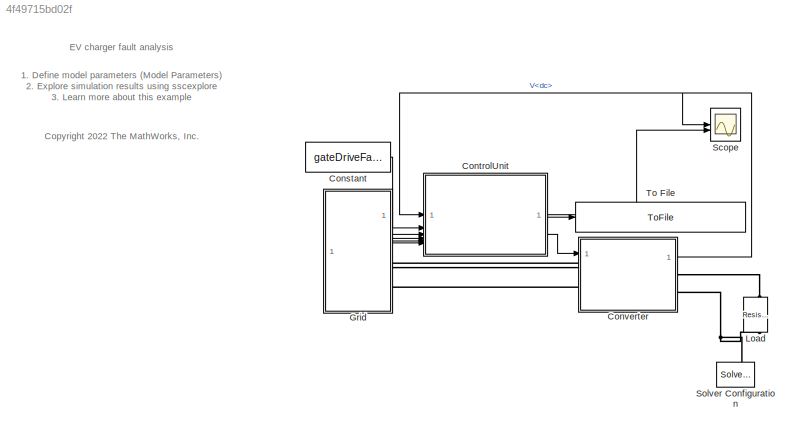
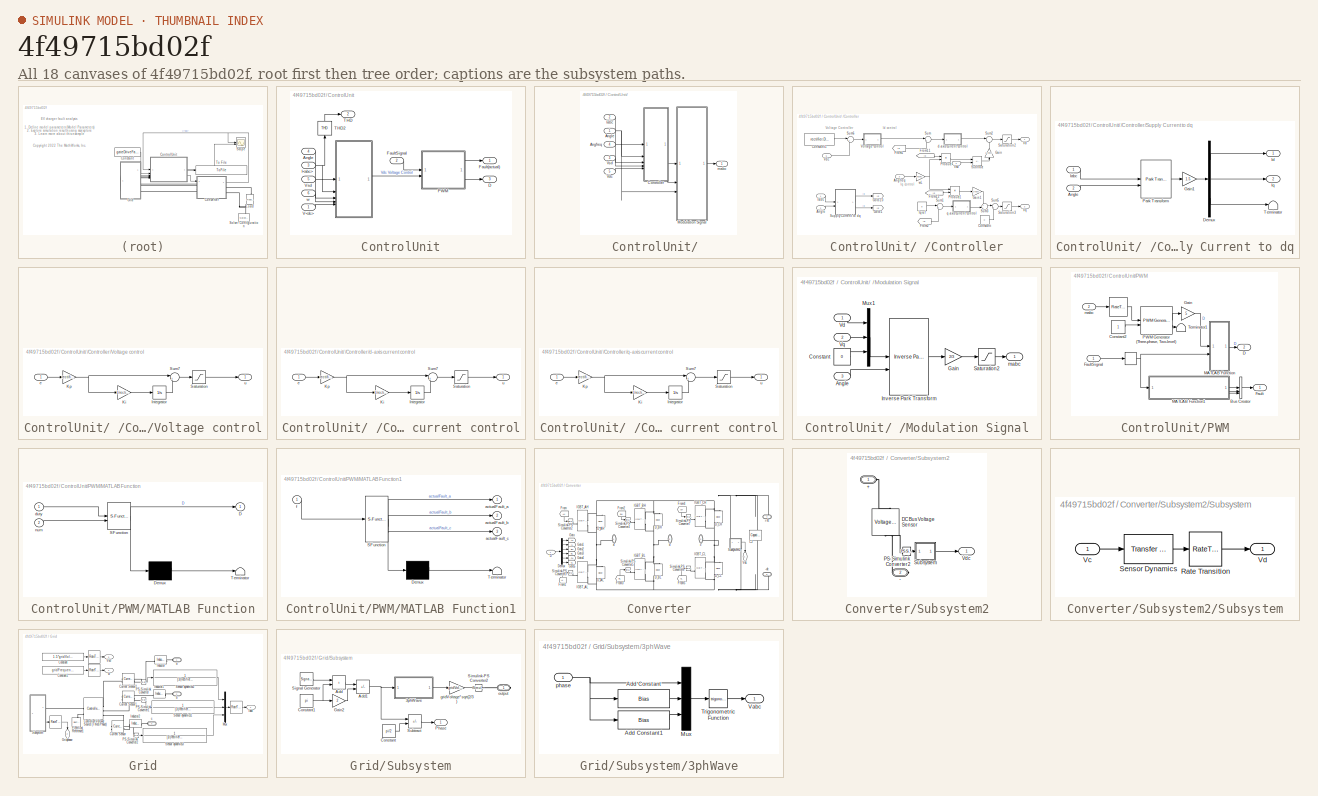
[diagram: thumbnail index - all 18 canvases of the model, root first then tree order]
MODEL slx_4f49715bd02f
KIND model
CONFIG AbsTol = 1e-3
CONFIG EnableMultiTasking = off
CONFIG FixedStep = 1e-7
CONFIG MaxStep = 1e-6
CONFIG MinStep = auto
CONFIG PreLoadFcn = systemLoadR=10;gridVoltage=415;gateDriveFault=zeros(6,1);\nee_EVchargerFaultAnalysis_ini\n
CONFIG RelTol = 1e-3
CONFIG SampleTimeConstraint = Unconstrained
CONFIG SolverName = ode1be
CONFIG StartTime = 0.0
CONFIG StopTime = .02
BLOCK [Constant] Constant
  Value = gateDriveFault
BLOCK [SubSystem] ControlUnit
  NameLocation = top
BLOCK [SubSystem] ControlUnit/ 
  NameLocation = right
BLOCK [Inport] ControlUnit/ /Angfreq
  Port = 4
BLOCK [Inport] ControlUnit/ /Angle
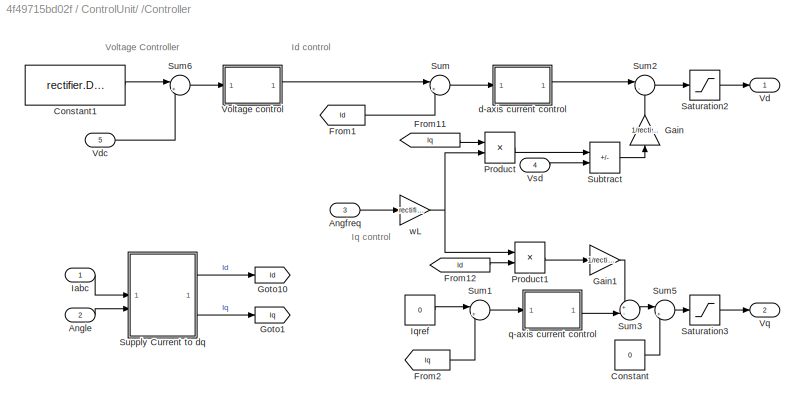
BLOCK [SubSystem] ControlUnit/ /Controller
BLOCK [Inport] ControlUnit/ /Controller/Angfreq
  Port = 3
BLOCK [Inport] ControlUnit/ /Controller/Angle
  Port = 2
BLOCK [Constant] ControlUnit/ /Controller/Constant
  Value = 0
BLOCK [Constant] ControlUnit/ /Controller/Constant1
  Value = rectifier.DCVoltage
BLOCK [From] ControlUnit/ /Controller/From1
  GotoTag = Id
  TagVisibility = global
BLOCK [From] ControlUnit/ /Controller/From11
  GotoTag = Iq
  TagVisibility = global
BLOCK [From] ControlUnit/ /Controller/From12
  GotoTag = Id
  TagVisibility = global
BLOCK [From] ControlUnit/ /Controller/From2
  GotoTag = Iq
  TagVisibility = global
BLOCK [Gain] ControlUnit/ /Controller/Gain
  Gain = 1/rectifier.G
  NameLocation = right
BLOCK [Gain] ControlUnit/ /Controller/Gain1
  Gain = 1/rectifier.G
BLOCK [Goto] ControlUnit/ /Controller/Goto1
  GotoTag = Iq
  TagVisibility = global
BLOCK [Goto] ControlUnit/ /Controller/Goto10
  GotoTag = Id
  TagVisibility = global
BLOCK [Inport] ControlUnit/ /Controller/Iabc
BLOCK [Constant] ControlUnit/ /Controller/Iqref
  Value = 0
BLOCK [Product] ControlUnit/ /Controller/Product
BLOCK [Product] ControlUnit/ /Controller/Product1
BLOCK [Saturate] ControlUnit/ /Controller/Saturation2
  LowerLimit = -3
  UpperLimit = 4
BLOCK [Saturate] ControlUnit/ /Controller/Saturation3
  LowerLimit = -1
  UpperLimit = 1
BLOCK [Sum] ControlUnit/ /Controller/Subtract
  IconShape = rectangular
  Inputs = -+
BLOCK [Sum] ControlUnit/ /Controller/Sum
  Inputs = |+-
BLOCK [Sum] ControlUnit/ /Controller/Sum1
  Inputs = |+-
  NameLocation = top
BLOCK [Sum] ControlUnit/ /Controller/Sum2
  Inputs = |-+
BLOCK [Sum] ControlUnit/ /Controller/Sum3
  Inputs = +-|
BLOCK [Sum] ControlUnit/ /Controller/Sum5
  Inputs = |++
BLOCK [Sum] ControlUnit/ /Controller/Sum6
  Inputs = |+-
BLOCK [SubSystem] ControlUnit/ /Controller/Supply Current to dq
BLOCK [Inport] ControlUnit/ /Controller/Supply Current to dq/Angle
  Port = 2
BLOCK [Demux] ControlUnit/ /Controller/Supply Current to dq/Demux
  Outputs = 3
BLOCK [Gain] ControlUnit/ /Controller/Supply Current to dq/Gain1
  Gain = 1.5
BLOCK [Inport] ControlUnit/ /Controller/Supply Current to dq/Iabc
BLOCK [Outport] ControlUnit/ /Controller/Supply Current to dq/Id
  VectorParamsAs1DForOutWhenUnconnected = off
BLOCK [Outport] ControlUnit/ /Controller/Supply Current to dq/Iq
  Port = 2
  VectorParamsAs1DForOutWhenUnconnected = off
BLOCK [Reference] ControlUnit/ /Controller/Supply Current to dq/Park Transform  REF=eeTransforms/Park Transform
  SourceBlock = eeTransforms/Park Transform
  SourceType = Park Transform
BLOCK [Terminator] ControlUnit/ /Controller/Supply Current to dq/Terminator
BLOCK [Outport] ControlUnit/ /Controller/Vd
  VectorParamsAs1DForOutWhenUnconnected = off
BLOCK [Inport] ControlUnit/ /Controller/Vdc
  Port = 5
BLOCK [SubSystem] ControlUnit/ /Controller/Voltage control
BLOCK [Integrator] ControlUnit/ /Controller/Voltage control/Integrator
  LimitOutput = on
  LowerSaturationLimit = -500
  UpperSaturationLimit = 500
BLOCK [Gain] ControlUnit/ /Controller/Voltage control/Ki
  Gain = 1/rectifier.controller.VoltageT
BLOCK [Gain] ControlUnit/ /Controller/Voltage control/Kp
  Gain = rectifier.controller.VoltageG
BLOCK [Saturate] ControlUnit/ /Controller/Voltage control/Saturation
  LowerLimit = -600
  UpperLimit = 600
BLOCK [Sum] ControlUnit/ /Controller/Voltage control/Sum7
  Inputs = |++
BLOCK [Inport] ControlUnit/ /Controller/Voltage control/e
BLOCK [Outport] ControlUnit/ /Controller/Voltage control/u
  VectorParamsAs1DForOutWhenUnconnected = off
BLOCK [Outport] ControlUnit/ /Controller/Vq
  Port = 2
  VectorParamsAs1DForOutWhenUnconnected = off
BLOCK [Inport] ControlUnit/ /Controller/Vsd
  Port = 4
BLOCK [SubSystem] ControlUnit/ /Controller/d-axis current control
BLOCK [Integrator] ControlUnit/ /Controller/d-axis current control/Integrator
  LimitOutput = on
  LowerSaturationLimit = -10
  UpperSaturationLimit = 10
BLOCK [Gain] ControlUnit/ /Controller/d-axis current control/Ki
  Gain = 1/rectifier.controller.CurrentT
BLOCK [Gain] ControlUnit/ /Controller/d-axis current control/Kp
  Gain = rectifier.controller.CurrentG
BLOCK [Saturate] ControlUnit/ /Controller/d-axis current control/Saturation
  LowerLimit = -4
  UpperLimit = 4
BLOCK [Sum] ControlUnit/ /Controller/d-axis current control/Sum7
  Inputs = |++
BLOCK [Inport] ControlUnit/ /Controller/d-axis current control/e
BLOCK [Outport] ControlUnit/ /Controller/d-axis current control/u
  VectorParamsAs1DForOutWhenUnconnected = off
BLOCK [SubSystem] ControlUnit/ /Controller/q-axis current control
BLOCK [Integrator] ControlUnit/ /Controller/q-axis current control/Integrator
  LimitOutput = on
  LowerSaturationLimit = -8
  UpperSaturationLimit = 8
BLOCK [Gain] ControlUnit/ /Controller/q-axis current control/Ki
  Gain = 1/rectifier.controller.CurrentT
BLOCK [Gain] ControlUnit/ /Controller/q-axis current control/Kp
  Gain = rectifier.controller.CurrentG
BLOCK [Saturate] ControlUnit/ /Controller/q-axis current control/Saturation
  LowerLimit = -3
  UpperLimit = 3
BLOCK [Sum] ControlUnit/ /Controller/q-axis current control/Sum7
  Inputs = |++
BLOCK [Inport] ControlUnit/ /Controller/q-axis current control/e
BLOCK [Outport] ControlUnit/ /Controller/q-axis current control/u
  VectorParamsAs1DForOutWhenUnconnected = off
BLOCK [Gain] ControlUnit/ /Controller/wL
  Gain = rectifier.lineInductance
BLOCK [Inport] ControlUnit/ /Iabc
  Port = 2
BLOCK [SubSystem] ControlUnit/ /Modulation Signal
BLOCK [Inport] ControlUnit/ /Modulation Signal/Angle
  NameLocation = left
  Port = 3
BLOCK [Constant] ControlUnit/ /Modulation Signal/Constant
  Value = 0
BLOCK [Gain] ControlUnit/ /Modulation Signal/Gain
  Gain = 2/3
BLOCK [Reference] ControlUnit/ /Modulation Signal/Inverse Park Transform  REF=eeTransforms/Inverse
Park Transform
  SourceBlock = eeTransforms/Inverse\nPark Transform
  SourceType = Inverse Park Transform
BLOCK [Mux] ControlUnit/ /Modulation Signal/Mux1
  DisplayOption = bar
  Inputs = 3
BLOCK [Saturate] ControlUnit/ /Modulation Signal/Saturation2
  LowerLimit = -1
  UpperLimit = 1
BLOCK [Inport] ControlUnit/ /Modulation Signal/Vd
  NameLocation = left
BLOCK [Inport] ControlUnit/ /Modulation Signal/Vq
  NameLocation = left
  Port = 2
BLOCK [Outport] ControlUnit/ /Modulation Signal/mabc
  VectorParamsAs1DForOutWhenUnconnected = off
BLOCK [Inport] ControlUnit/ /Vdc
  Port = 5
BLOCK [Inport] ControlUnit/ /Vsd
  Port = 3
BLOCK [Outport] ControlUnit/ /mabc
BLOCK [Inport] ControlUnit/Angle
  Port = 4
BLOCK [Outport] ControlUnit/D
  Port = 3
BLOCK [Outport] ControlUnit/Fault(actual)
BLOCK [Inport] ControlUnit/FaultSignal
  Port = 2
BLOCK [Inport] ControlUnit/I<abc>
  Port = 3
BLOCK [SubSystem] ControlUnit/PWM
BLOCK [RateTransition] ControlUnit/PWM/     
  OutPortSampleTime = rectifier.VoltageSensorT
BLOCK [RateTransition] ControlUnit/PWM/      
  OutPortSampleTime = rectifier.VoltageSensorT
BLOCK [BusCreator] ControlUnit/PWM/Bus Creator
  DisplayOption = bar
  InheritFromInputs = on
  Inputs = 3
BLOCK [Constant] ControlUnit/PWM/Constant2
  SampleTime = rectifier.VoltageSensorT
BLOCK [Outport] ControlUnit/PWM/D
  Port = 2
BLOCK [Outport] ControlUnit/PWM/Fault
BLOCK [Inport] ControlUnit/PWM/FaultSignal
BLOCK [Gain] ControlUnit/PWM/Gain
  Gain = 5
BLOCK [SubSystem] ControlUnit/PWM/MATLAB Function
  ErrorFcn = Stateflow.Translate.translate
  PermitHierarchicalResolution = ExplicitOnly
  SFBlockType = MATLAB Function
  TreatAsAtomicUnit = on
BLOCK [Demux] ControlUnit/PWM/MATLAB Function/ Demux 
  Outputs = 1
BLOCK [S-Function] ControlUnit/PWM/MATLAB Function/ SFunction 
  EnableBusSupport = on
  FunctionName = sf_sfun
  PortCounts = [2 2]
  SFcnIsStateOwnerBlock = off
  SFunctionDeploymentMode = off
  Tag = Stateflow S-Function 2
BLOCK [Terminator] ControlUnit/PWM/MATLAB Function/ Terminator 
BLOCK [Outport] ControlUnit/PWM/MATLAB Function/D
BLOCK [Inport] ControlUnit/PWM/MATLAB Function/duty
BLOCK [Inport] ControlUnit/PWM/MATLAB Function/num
  Port = 2
BLOCK [SubSystem] ControlUnit/PWM/MATLAB Function1
  ErrorFcn = Stateflow.Translate.translate
  PermitHierarchicalResolution = ExplicitOnly
  SFBlockType = MATLAB Function
  TreatAsAtomicUnit = on
BLOCK [Demux] ControlUnit/PWM/MATLAB Function1/ Demux 
  Outputs = 1
BLOCK [S-Function] ControlUnit/PWM/MATLAB Function1/ SFunction 
  EnableBusSupport = on
  FunctionName = sf_sfun
  PortCounts = [1 4]
  SFcnIsStateOwnerBlock = off
  SFunctionDeploymentMode = off
  Tag = Stateflow S-Function 1
BLOCK [Terminator] ControlUnit/PWM/MATLAB Function1/ Terminator 
BLOCK [Outport] ControlUnit/PWM/MATLAB Function1/actualFault_a
BLOCK [Outport] ControlUnit/PWM/MATLAB Function1/actualFault_b
  Port = 2
BLOCK [Outport] ControlUnit/PWM/MATLAB Function1/actualFault_c
  Port = 3
BLOCK [Inport] ControlUnit/PWM/MATLAB Function1/f
BLOCK [Reference] ControlUnit/PWM/PWM Generator (Three-phase, Two-level)  REF=eePwmGeneratorTwoLevel/PWM Generator
(Three-phase, Two-level)
  SourceBlock = eePwmGeneratorTwoLevel/PWM Generator\n(Three-phase, Two-level)
  SourceType = PWM Generator (three-phase, two-level)
BLOCK [Terminator] ControlUnit/PWM/Terminator1
BLOCK [Inport] ControlUnit/PWM/mabc
  Port = 2
BLOCK [Outport] ControlUnit/THD
  Port = 2
BLOCK [Reference] ControlUnit/THD2  REF=spsTHDLib/THD
  NameLocation = right
  SourceBlock = spsTHDLib/THD
  SourceType = THD
BLOCK [Inport] ControlUnit/V<dc>
BLOCK [Inport] ControlUnit/Vsd
  Port = 5
BLOCK [Inport] ControlUnit/w
  Port = 6
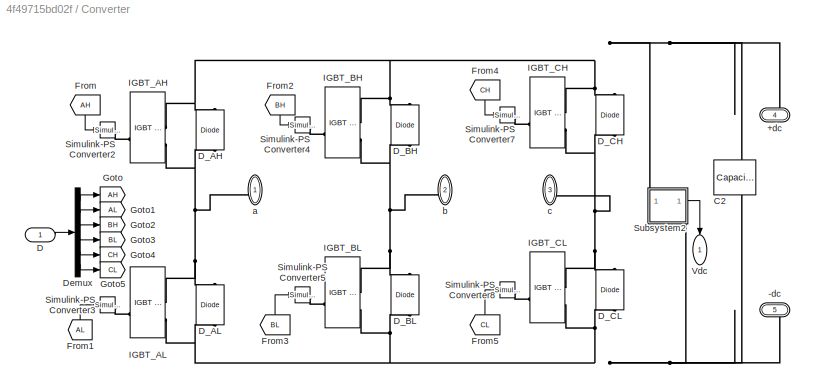
BLOCK [SubSystem] Converter
BLOCK [PMIOPort] Converter/+dc
  Port = 4
  Side = Right
BLOCK [PMIOPort] Converter/-dc
  Port = 5
  Side = Right
BLOCK [Reference] Converter/C2  REF=fl_lib/Electrical/Electrical Elements/Capacitor
  NameLocation = left
  SourceBlock = fl_lib/Electrical/Electrical Elements/Capacitor
  SourceType = Capacitor
BLOCK [Inport] Converter/D
BLOCK [Reference] Converter/D_AH  REF=fl_lib/Electrical/Electrical Elements/Diode
  NameLocation = right
  SourceBlock = fl_lib/Electrical/Electrical Elements/Diode
  SourceType = Diode
BLOCK [Reference] Converter/D_AL  REF=fl_lib/Electrical/Electrical Elements/Diode
  NameLocation = right
  SourceBlock = fl_lib/Electrical/Electrical Elements/Diode
  SourceType = Diode
BLOCK [Reference] Converter/D_BH  REF=fl_lib/Electrical/Electrical Elements/Diode
  NameLocation = right
  SourceBlock = fl_lib/Electrical/Electrical Elements/Diode
  SourceType = Diode
BLOCK [Reference] Converter/D_BL  REF=fl_lib/Electrical/Electrical Elements/Diode
  NameLocation = right
  SourceBlock = fl_lib/Electrical/Electrical Elements/Diode
  SourceType = Diode
BLOCK [Reference] Converter/D_CH  REF=fl_lib/Electrical/Electrical Elements/Diode
  NameLocation = right
  SourceBlock = fl_lib/Electrical/Electrical Elements/Diode
  SourceType = Diode
BLOCK [Reference] Converter/D_CL  REF=fl_lib/Electrical/Electrical Elements/Diode
  NameLocation = right
  SourceBlock = fl_lib/Electrical/Electrical Elements/Diode
  SourceType = Diode
BLOCK [Demux] Converter/Demux
  Outputs = 6
BLOCK [From] Converter/From
  GotoTag = AH
  NameLocation = left
BLOCK [From] Converter/From1
  GotoTag = AL
  NameLocation = right
BLOCK [From] Converter/From2
  GotoTag = BH
  NameLocation = left
BLOCK [From] Converter/From3
  GotoTag = BL
  NameLocation = right
BLOCK [From] Converter/From4
  GotoTag = CH
  NameLocation = left
BLOCK [From] Converter/From5
  GotoTag = CL
  NameLocation = right
BLOCK [Goto] Converter/Goto
  GotoTag = AH
BLOCK [Goto] Converter/Goto1
  GotoTag = AL
BLOCK [Goto] Converter/Goto2
  GotoTag = BH
BLOCK [Goto] Converter/Goto3
  GotoTag = BL
BLOCK [Goto] Converter/Goto4
  GotoTag = CH
BLOCK [Goto] Converter/Goto5
  GotoTag = CL
BLOCK [Reference] Converter/IGBT_AH  REF=ee_lib/Semiconductors &
Converters/IGBT
(Ideal,
Switching)
  SourceBlock = ee_lib/Semiconductors &\nConverters/IGBT\n(Ideal,\nSwitching)
  SourceType = IGBT\n(Ideal,\nSwitching)
BLOCK [Reference] Converter/IGBT_AL  REF=ee_lib/Semiconductors &
Converters/IGBT
(Ideal,
Switching)
  SourceBlock = ee_lib/Semiconductors &\nConverters/IGBT\n(Ideal,\nSwitching)
  SourceType = IGBT\n(Ideal,\nSwitching)
BLOCK [Reference] Converter/IGBT_BH  REF=ee_lib/Semiconductors &
Converters/IGBT
(Ideal,
Switching)
  SourceBlock = ee_lib/Semiconductors &\nConverters/IGBT\n(Ideal,\nSwitching)
  SourceType = IGBT\n(Ideal,\nSwitching)
BLOCK [Reference] Converter/IGBT_BL  REF=ee_lib/Semiconductors &
Converters/IGBT
(Ideal,
Switching)
  SourceBlock = ee_lib/Semiconductors &\nConverters/IGBT\n(Ideal,\nSwitching)
  SourceType = IGBT\n(Ideal,\nSwitching)
BLOCK [Reference] Converter/IGBT_CH  REF=ee_lib/Semiconductors &
Converters/IGBT
(Ideal,
Switching)
  SourceBlock = ee_lib/Semiconductors &\nConverters/IGBT\n(Ideal,\nSwitching)
  SourceType = IGBT\n(Ideal,\nSwitching)
BLOCK [Reference] Converter/IGBT_CL  REF=ee_lib/Semiconductors &
Converters/IGBT
(Ideal,
Switching)
  SourceBlock = ee_lib/Semiconductors &\nConverters/IGBT\n(Ideal,\nSwitching)
  SourceType = IGBT\n(Ideal,\nSwitching)
BLOCK [Reference] Converter/Simulink-PS Converter2  REF=nesl_utility_internal/Simulink-PS
Converter
  SourceBlock = nesl_utility_internal/Simulink-PS\nConverter
  SourceType = Simulink-PS\nConverter
BLOCK [Reference] Converter/Simulink-PS Converter3  REF=nesl_utility_internal/Simulink-PS
Converter
  SourceBlock = nesl_utility_internal/Simulink-PS\nConverter
  SourceType = Simulink-PS\nConverter
BLOCK [Reference] Converter/Simulink-PS Converter4  REF=nesl_utility_internal/Simulink-PS
Converter
  SourceBlock = nesl_utility_internal/Simulink-PS\nConverter
  SourceType = Simulink-PS\nConverter
BLOCK [Reference] Converter/Simulink-PS Converter5  REF=nesl_utility_internal/Simulink-PS
Converter
  SourceBlock = nesl_utility_internal/Simulink-PS\nConverter
  SourceType = Simulink-PS\nConverter
BLOCK [Reference] Converter/Simulink-PS Converter7  REF=nesl_utility_internal/Simulink-PS
Converter
  SourceBlock = nesl_utility_internal/Simulink-PS\nConverter
  SourceType = Simulink-PS\nConverter
BLOCK [Reference] Converter/Simulink-PS Converter8  REF=nesl_utility_internal/Simulink-PS
Converter
  SourceBlock = nesl_utility_internal/Simulink-PS\nConverter
  SourceType = Simulink-PS\nConverter
BLOCK [SubSystem] Converter/Subsystem2
  PortSchema = {"entries":[{"content":{"sides":[{"content":{"connectorIds":[]},"type":"ConnectorPlacement.EquallySpacedRectSide","uuid":"06aa05e2-31cf-4114-abf2-efd45a9c45b6"},{"content":{"connectorIds":["Out1"],"side":"RIGHT"},"type":"ConnectorPlacement.EquallySpacedRectSide","uuid":"474bb45b-51b3-4774-b6d0-e02539d49913"},{"content":{"connectorIds":["LConn1"],"side":"TOP"},"type":"ConnectorPlacement.EquallySpac...<+395ch>
BLOCK [PMIOPort] Converter/Subsystem2/+
  Side = Left
BLOCK [PMIOPort] Converter/Subsystem2/-
  Port = 2
  Side = Right
BLOCK [Reference] Converter/Subsystem2/DC Bus Voltage Sensor  REF=fl_lib/Electrical/Electrical Sensors/Voltage Sensor
  NameLocation = right
  SourceBlock = fl_lib/Electrical/Electrical Sensors/Voltage Sensor
  SourceType = Voltage Sensor
BLOCK [Reference] Converter/Subsystem2/PS-Simulink Converter2  REF=nesl_utility_internal/PS-Simulink
Converter
  SourceBlock = nesl_utility_internal/PS-Simulink\nConverter
  SourceType = PS-Simulink\nConverter
BLOCK [SubSystem] Converter/Subsystem2/Subsystem
BLOCK [RateTransition] Converter/Subsystem2/Subsystem/Rate Transition
  OutPortSampleTime = rectifier.VoltageSensorT
BLOCK [Reference] Converter/Subsystem2/Subsystem/Sensor Dynamics  REF=simulink_extras/Additional
Linear/Transfer Fcn
(with initial outputs)
  SourceBlock = simulink_extras/Additional\nLinear/Transfer Fcn\n(with initial outputs)
  SourceType = Transfer Function with Initial Outputs
BLOCK [Inport] Converter/Subsystem2/Subsystem/Vc
BLOCK [Outport] Converter/Subsystem2/Subsystem/Vd
BLOCK [Outport] Converter/Subsystem2/Vdc
BLOCK [Outport] Converter/Vdc
  NameLocation = left
BLOCK [PMIOPort] Converter/a
  NameLocation = left
  Side = Left
BLOCK [PMIOPort] Converter/b
  NameLocation = left
  Port = 2
  Side = Left
BLOCK [PMIOPort] Converter/c
  NameLocation = left
  Port = 3
  Side = Left
BLOCK [SubSystem] Grid
  PortSchema = {"entries":[{"content":{"sides":[{"content":{"connectorIds":["Out1","Out2","Out3","Out4","LConn1","LConn2","LConn3"]},"type":"ConnectorPlacement.EquallySpacedRectSide","uuid":"4fdb71ce-44f4-46a0-827f-745b3af18c5d"},{"content":{"connectorIds":[],"side":"RIGHT"},"type":"ConnectorPlacement.EquallySpacedRectSide","uuid":"ac631f52-34ca-4a78-8163-5035c6d99c78"},{"content":{"connectorIds":[],"side":"TOP"...<+283ch>
BLOCK [RateTransition] Grid/       
  OutPortSampleTime = rectifier.VoltageSensorT
BLOCK [RateTransition] Grid/        
  OutPortSampleTime = rectifier.VoltageSensorT
BLOCK [RateTransition] Grid/         
  OutPortSampleTime = rectifier.VoltageSensorT
BLOCK [RateTransition] Grid/          
  OutPortSampleTime = rectifier.VoltageSensorT
BLOCK [Constant] Grid/Constant
  Value = 1.5*gridVoltage*sqrt(2/3)
BLOCK [Constant] Grid/Constant1
  Value = gridFrequency*2*pi
BLOCK [Reference] Grid/Controlled Voltage Source (Three-Phase)  REF=ee_lib/Sources/Controlled Voltage
Source
(Three-Phase)
  SourceBlock = ee_lib/Sources/Controlled Voltage\nSource\n(Three-Phase)
  SourceType = Controlled Voltage\nSource\n(Three-Phase)
BLOCK [Reference] Grid/Current Sensor  REF=fl_lib/Electrical/Electrical Sensors/Current Sensor
  SourceBlock = fl_lib/Electrical/Electrical Sensors/Current Sensor
  SourceType = Current Sensor
BLOCK [Reference] Grid/Current Sensor1  REF=fl_lib/Electrical/Electrical Sensors/Current Sensor
  SourceBlock = fl_lib/Electrical/Electrical Sensors/Current Sensor
  SourceType = Current Sensor
BLOCK [Reference] Grid/Current Sensor2  REF=fl_lib/Electrical/Electrical Sensors/Current Sensor
  SourceBlock = fl_lib/Electrical/Electrical Sensors/Current Sensor
  SourceType = Current Sensor
BLOCK [Reference] Grid/Electrical Reference1  REF=fl_lib/Electrical/Electrical Elements/Electrical Reference
  NameLocation = right
  SourceBlock = fl_lib/Electrical/Electrical Elements/Electrical Reference
  SourceType = Electrical Reference
BLOCK [Outport] Grid/Gridphase
  NameLocation = left
  Port = 2
BLOCK [Outport] Grid/Iabc
BLOCK [Reference] Grid/Inductor  REF=ee_lib/Passive/Inductor
  SourceBlock = ee_lib/Passive/Inductor
  SourceType = Inductor
BLOCK [Reference] Grid/Inductor1  REF=ee_lib/Passive/Inductor
  SourceBlock = ee_lib/Passive/Inductor
  SourceType = Inductor
BLOCK [Reference] Grid/Inductor2  REF=ee_lib/Passive/Inductor
  SourceBlock = ee_lib/Passive/Inductor
  SourceType = Inductor
BLOCK [Mux] Grid/Mux
  DisplayOption = bar
  Inputs = 3
BLOCK [Reference] Grid/PS-Simulink Converter  REF=nesl_utility_internal/PS-Simulink
Converter
  SourceBlock = nesl_utility_internal/PS-Simulink\nConverter
  SourceType = PS-Simulink\nConverter
BLOCK [Reference] Grid/PS-Simulink Converter1  REF=nesl_utility_internal/PS-Simulink
Converter
  SourceBlock = nesl_utility_internal/PS-Simulink\nConverter
  SourceType = PS-Simulink\nConverter
BLOCK [Reference] Grid/PS-Simulink Converter2  REF=nesl_utility_internal/PS-Simulink
Converter
  SourceBlock = nesl_utility_internal/PS-Simulink\nConverter
  SourceType = PS-Simulink\nConverter
BLOCK [TransferFcn] Grid/Sensor dynamics1
  Denominator = [1/(rectifier.SwitchFrequency) 1]
  Numerator = 1
BLOCK [TransferFcn] Grid/Sensor dynamics2
  Denominator = [1/(rectifier.SwitchFrequency) 1]
  Numerator = 1
BLOCK [TransferFcn] Grid/Sensor dynamics3
  Denominator = [1/(rectifier.SwitchFrequency) 1]
  Numerator = 1
BLOCK [SubSystem] Grid/Subsystem
  NameLocation = top
  PortSchema = {"entries":[{"content":{"sides":[{"content":{"connectorIds":[]},"type":"ConnectorPlacement.EquallySpacedRectSide","uuid":"9461f593-36e7-4649-9015-055d88845308"},{"content":{"connectorIds":["RConn1","Out1"],"side":"RIGHT"},"type":"ConnectorPlacement.EquallySpacedRectSide","uuid":"a8cdaa21-f1e8-4597-b42a-33637c11865c"},{"content":{"connectorIds":[],"side":"TOP"},"type":"ConnectorPlacement.EquallySpa...<+244ch>
BLOCK [SubSystem] Grid/Subsystem/3phWave
BLOCK [Bias] Grid/Subsystem/3phWave/Add Constant
  Bias = -120*pi/180
  SaturateOnIntegerOverflow = off
BLOCK [Bias] Grid/Subsystem/3phWave/Add Constant1
  Bias = 120*pi/180
  SaturateOnIntegerOverflow = off
BLOCK [Mux] Grid/Subsystem/3phWave/Mux
  DisplayOption = bar
  Inputs = 3
BLOCK [Trigonometry] Grid/Subsystem/3phWave/Trigonometric Function
BLOCK [Outport] Grid/Subsystem/3phWave/Vabc
BLOCK [Inport] Grid/Subsystem/3phWave/phase
BLOCK [Sum] Grid/Subsystem/Add
  IconShape = rectangular
BLOCK [Sum] Grid/Subsystem/Add1
  IconShape = rectangular
  Inputs = -+
BLOCK [Constant] Grid/Subsystem/Constant
  Value = pi/2
BLOCK [Constant] Grid/Subsystem/Constant1
  Value = pi
BLOCK [Gain] Grid/Subsystem/Gain2
  Gain = 2
BLOCK [Outport] Grid/Subsystem/Phase
BLOCK [SignalGenerator] Grid/Subsystem/Signal Generator
  Amplitude = pi
  Frequency = gridFrequency
  WaveForm = sawtooth
BLOCK [Reference] Grid/Subsystem/Simulink-PS Converter2  REF=nesl_utility_internal/Simulink-PS
Converter
  SourceBlock = nesl_utility_internal/Simulink-PS\nConverter
  SourceType = Simulink-PS\nConverter
BLOCK [Sum] Grid/Subsystem/Subtract
  IconShape = rectangular
  Inputs = +-
BLOCK [Gain] Grid/Subsystem/gridVoltage*sqrt(2//3)
  Gain = gridVoltage*sqrt(2/3)
BLOCK [PMIOPort] Grid/Subsystem/output
  Side = Right
BLOCK [Outport] Grid/Vsd
  Port = 3
BLOCK [PMIOPort] Grid/a
  NameLocation = top
  Side = Left
BLOCK [PMIOPort] Grid/b
  NameLocation = top
  Port = 2
  Side = Left
BLOCK [PMIOPort] Grid/c
  NameLocation = top
  Port = 3
  Side = Left
BLOCK [Outport] Grid/w
  Port = 4
BLOCK [Reference] Load  REF=fl_lib/Electrical/Electrical Elements/Resistor
  NameLocation = right
  SourceBlock = fl_lib/Electrical/Electrical Elements/Resistor
  SourceType = Resistor
BLOCK [Scope] Scope
  Floating = off
  NumInputPorts = 2
  ScopeSpecificationString = Simulink.scopes.TimeScopeBlockCfg('CurrentConfiguration', extmgr.ConfigurationSet(extmgr.Configuration('Core','General UI',true),extmgr.Configuration('Core','Source UI',true),extmgr.Configuration('Sources','WiredSimulink',true),extmgr.Configuration('Visuals','Time Domain',true,'SerializedDisplays',{struct('MinYLimReal','396.11091','MaxYLimReal','845.83655','YLabelReal','Vdc','MinYLimMag','396.1109...<+1976ch>
BLOCK [Reference] Solver Configuration  REF=nesl_utility_internal/Solver
Configuration
  NameLocation = left
  SourceBlock = nesl_utility_internal/Solver\nConfiguration
  SourceType = Solver\nConfiguration
BLOCK [ToFile] To File
  Filename = ee_EVchargerFaultAnalysis_data.mat
  MatrixName = THD
  SaveFormat = Timeseries
ANNOTATION (root): 1. Define model parameters ( Model Parameters ) 2. Explore simulation results using sscexplore 3. Learn more about this example
ANNOTATION (root): EV charger fault analysis
ANNOTATION (root): <copyright redacted>
ANNOTATION ControlUnit/ /Controller: Id control
ANNOTATION ControlUnit/ /Controller: Iq control
ANNOTATION ControlUnit/ /Controller: Voltage Controller
LINE Constant:1 -> ControlUnit:2
LINE ControlUnit/ /Angfreq:1 -> ControlUnit/ /Controller:3
NET ControlUnit/ /Angle:1 -> ControlUnit/ /Controller:2, ControlUnit/ /Modulation Signal:3
LINE ControlUnit/ /Controller/Angfreq:1 -> ControlUnit/ /Controller/wL:1
LINE ControlUnit/ /Controller/Angle:1 -> ControlUnit/ /Controller/Supply Current to dq:2
LINE ControlUnit/ /Controller/Constant1:1 -> ControlUnit/ /Controller/Sum6:1
LINE ControlUnit/ /Controller/Constant:1 -> ControlUnit/ /Controller/Sum5:2
LINE ControlUnit/ /Controller/From11:1 -> ControlUnit/ /Controller/Product:1
LINE ControlUnit/ /Controller/From12:1 -> ControlUnit/ /Controller/Product1:2
LINE ControlUnit/ /Controller/From1:1 -> ControlUnit/ /Controller/Sum:2
LINE ControlUnit/ /Controller/From2:1 -> ControlUnit/ /Controller/Sum1:2
LINE ControlUnit/ /Controller/Gain1:1 -> ControlUnit/ /Controller/Sum3:1
LINE ControlUnit/ /Controller/Gain:1 -> ControlUnit/ /Controller/Sum2:2
LINE ControlUnit/ /Controller/Iabc:1 -> ControlUnit/ /Controller/Supply Current to dq:1
LINE ControlUnit/ /Controller/Iqref:1 -> ControlUnit/ /Controller/Sum1:1
LINE ControlUnit/ /Controller/Product1:1 -> ControlUnit/ /Controller/Gain1:1
LINE ControlUnit/ /Controller/Product:1 -> ControlUnit/ /Controller/Subtract:1
LINE ControlUnit/ /Controller/Saturation2:1 -> ControlUnit/ /Controller/Vd:1
LINE ControlUnit/ /Controller/Saturation3:1 -> ControlUnit/ /Controller/Vq:1
LINE ControlUnit/ /Controller/Subtract:1 -> ControlUnit/ /Controller/Gain:1
LINE ControlUnit/ /Controller/Sum1:1 -> ControlUnit/ /Controller/q-axis current control:1
LINE ControlUnit/ /Controller/Sum2:1 -> ControlUnit/ /Controller/Saturation2:1
LINE ControlUnit/ /Controller/Sum3:1 -> ControlUnit/ /Controller/Sum5:1
LINE ControlUnit/ /Controller/Sum5:1 -> ControlUnit/ /Controller/Saturation3:1
LINE ControlUnit/ /Controller/Sum6:1 -> ControlUnit/ /Controller/Voltage control:1
LINE ControlUnit/ /Controller/Sum:1 -> ControlUnit/ /Controller/d-axis current control:1
LINE ControlUnit/ /Controller/Supply Current to dq/Angle:1 -> ControlUnit/ /Controller/Supply Current to dq/Park Transform:2
LINE ControlUnit/ /Controller/Supply Current to dq/Demux:1 -> ControlUnit/ /Controller/Supply Current to dq/Id:1
LINE ControlUnit/ /Controller/Supply Current to dq/Demux:2 -> ControlUnit/ /Controller/Supply Current to dq/Iq:1
LINE ControlUnit/ /Controller/Supply Current to dq/Demux:3 -> ControlUnit/ /Controller/Supply Current to dq/Terminator:1
LINE ControlUnit/ /Controller/Supply Current to dq/Gain1:1 -> ControlUnit/ /Controller/Supply Current to dq/Demux:1
LINE ControlUnit/ /Controller/Supply Current to dq/Iabc:1 -> ControlUnit/ /Controller/Supply Current to dq/Park Transform:1
LINE ControlUnit/ /Controller/Supply Current to dq/Park Transform:1 -> ControlUnit/ /Controller/Supply Current to dq/Gain1:1
LINE ControlUnit/ /Controller/Supply Current to dq:1 -> ControlUnit/ /Controller/Goto10:1
LINE ControlUnit/ /Controller/Supply Current to dq:2 -> ControlUnit/ /Controller/Goto1:1
LINE ControlUnit/ /Controller/Vdc:1 -> ControlUnit/ /Controller/Sum6:2
LINE ControlUnit/ /Controller/Voltage control/Integrator:1 -> ControlUnit/ /Controller/Voltage control/Sum7:2
LINE ControlUnit/ /Controller/Voltage control/Ki:1 -> ControlUnit/ /Controller/Voltage control/Integrator:1
NET ControlUnit/ /Controller/Voltage control/Kp:1 -> ControlUnit/ /Controller/Voltage control/Ki:1, ControlUnit/ /Controller/Voltage control/Sum7:1
LINE ControlUnit/ /Controller/Voltage control/Saturation:1 -> ControlUnit/ /Controller/Voltage control/u:1
LINE ControlUnit/ /Controller/Voltage control/Sum7:1 -> ControlUnit/ /Controller/Voltage control/Saturation:1
LINE ControlUnit/ /Controller/Voltage control/e:1 -> ControlUnit/ /Controller/Voltage control/Kp:1
LINE ControlUnit/ /Controller/Voltage control:1 -> ControlUnit/ /Controller/Sum:1
LINE ControlUnit/ /Controller/Vsd:1 -> ControlUnit/ /Controller/Subtract:2
LINE ControlUnit/ /Controller/d-axis current control/Integrator:1 -> ControlUnit/ /Controller/d-axis current control/Sum7:2
LINE ControlUnit/ /Controller/d-axis current control/Ki:1 -> ControlUnit/ /Controller/d-axis current control/Integrator:1
NET ControlUnit/ /Controller/d-axis current control/Kp:1 -> ControlUnit/ /Controller/d-axis current control/Ki:1, ControlUnit/ /Controller/d-axis current control/Sum7:1
LINE ControlUnit/ /Controller/d-axis current control/Saturation:1 -> ControlUnit/ /Controller/d-axis current control/u:1
LINE ControlUnit/ /Controller/d-axis current control/Sum7:1 -> ControlUnit/ /Controller/d-axis current control/Saturation:1
LINE ControlUnit/ /Controller/d-axis current control/e:1 -> ControlUnit/ /Controller/d-axis current control/Kp:1
LINE ControlUnit/ /Controller/d-axis current control:1 -> ControlUnit/ /Controller/Sum2:1
LINE ControlUnit/ /Controller/q-axis current control/Integrator:1 -> ControlUnit/ /Controller/q-axis current control/Sum7:2
LINE ControlUnit/ /Controller/q-axis current control/Ki:1 -> ControlUnit/ /Controller/q-axis current control/Integrator:1
NET ControlUnit/ /Controller/q-axis current control/Kp:1 -> ControlUnit/ /Controller/q-axis current control/Ki:1, ControlUnit/ /Controller/q-axis current control/Sum7:1
LINE ControlUnit/ /Controller/q-axis current control/Saturation:1 -> ControlUnit/ /Controller/q-axis current control/u:1
LINE ControlUnit/ /Controller/q-axis current control/Sum7:1 -> ControlUnit/ /Controller/q-axis current control/Saturation:1
LINE ControlUnit/ /Controller/q-axis current control/e:1 -> ControlUnit/ /Controller/q-axis current control/Kp:1
LINE ControlUnit/ /Controller/q-axis current control:1 -> ControlUnit/ /Controller/Sum3:2
NET ControlUnit/ /Controller/wL:1 -> ControlUnit/ /Controller/Product1:1, ControlUnit/ /Controller/Product:2
LINE ControlUnit/ /Controller:1 -> ControlUnit/ /Modulation Signal:1
LINE ControlUnit/ /Controller:2 -> ControlUnit/ /Modulation Signal:2
LINE ControlUnit/ /Iabc:1 -> ControlUnit/ /Controller:1
LINE ControlUnit/ /Modulation Signal/Angle:1 -> ControlUnit/ /Modulation Signal/Inverse Park Transform:2
LINE ControlUnit/ /Modulation Signal/Constant:1 -> ControlUnit/ /Modulation Signal/Mux1:3
LINE ControlUnit/ /Modulation Signal/Gain:1 -> ControlUnit/ /Modulation Signal/Saturation2:1
LINE ControlUnit/ /Modulation Signal/Inverse Park Transform:1 -> ControlUnit/ /Modulation Signal/Gain:1
LINE ControlUnit/ /Modulation Signal/Mux1:1 -> ControlUnit/ /Modulation Signal/Inverse Park Transform:1
LINE ControlUnit/ /Modulation Signal/Saturation2:1 -> ControlUnit/ /Modulation Signal/mabc:1
LINE ControlUnit/ /Modulation Signal/Vd:1 -> ControlUnit/ /Modulation Signal/Mux1:1
LINE ControlUnit/ /Modulation Signal/Vq:1 -> ControlUnit/ /Modulation Signal/Mux1:2
LINE ControlUnit/ /Modulation Signal:1 -> ControlUnit/ /mabc:1
LINE ControlUnit/ /Vdc:1 -> ControlUnit/ /Controller:5
LINE ControlUnit/ /Vsd:1 -> ControlUnit/ /Controller:4
LINE ControlUnit/ :1 -> ControlUnit/PWM:2
LINE ControlUnit/Angle:1 -> ControlUnit/ :1
LINE ControlUnit/FaultSignal:1 -> ControlUnit/PWM:1
NET ControlUnit/I<abc>:1 -> ControlUnit/ :2, ControlUnit/THD2:1
NET ControlUnit/PWM/      :1 -> ControlUnit/PWM/MATLAB Function1:1, ControlUnit/PWM/MATLAB Function:2
LINE ControlUnit/PWM/     :1 -> ControlUnit/PWM/PWM Generator (Three-phase, Two-level):1
LINE ControlUnit/PWM/Bus Creator:1 -> ControlUnit/PWM/Fault:1
LINE ControlUnit/PWM/Constant2:1 -> ControlUnit/PWM/PWM Generator (Three-phase, Two-level):2
LINE ControlUnit/PWM/FaultSignal:1 -> ControlUnit/PWM/      :1
LINE ControlUnit/PWM/Gain:1 -> ControlUnit/PWM/MATLAB Function:1
LINE ControlUnit/PWM/MATLAB Function1:1 -> ControlUnit/PWM/Bus Creator:1
LINE ControlUnit/PWM/MATLAB Function1:2 -> ControlUnit/PWM/Bus Creator:2
LINE ControlUnit/PWM/MATLAB Function1:3 -> ControlUnit/PWM/Bus Creator:3
LINE ControlUnit/PWM/MATLAB Function:1 -> ControlUnit/PWM/D:1
LINE ControlUnit/PWM/PWM Generator (Three-phase, Two-level):1 -> ControlUnit/PWM/Gain:1
LINE ControlUnit/PWM/PWM Generator (Three-phase, Two-level):2 -> ControlUnit/PWM/Terminator1:1
LINE ControlUnit/PWM/mabc:1 -> ControlUnit/PWM/     :1
LINE ControlUnit/PWM:1 -> ControlUnit/Fault(actual):1
LINE ControlUnit/PWM:2 -> ControlUnit/D:1
LINE ControlUnit/THD2:1 -> ControlUnit/THD:1
LINE ControlUnit/V<dc>:1 -> ControlUnit/ :5
LINE ControlUnit/Vsd:1 -> ControlUnit/ :3
LINE ControlUnit/w:1 -> ControlUnit/ :4
LINE ControlUnit:1 -> Scope:2
LINE ControlUnit:2 -> To File:1
LINE ControlUnit:3 -> Converter:1
LINE Converter/D:1 -> Converter/Demux:1
LINE Converter/Demux:1 -> Converter/Goto:1
LINE Converter/Demux:2 -> Converter/Goto1:1
LINE Converter/Demux:3 -> Converter/Goto2:1
LINE Converter/Demux:4 -> Converter/Goto3:1
LINE Converter/Demux:5 -> Converter/Goto4:1
LINE Converter/Demux:6 -> Converter/Goto5:1
LINE Converter/From1:1 -> Converter/Simulink-PS Converter3:1
LINE Converter/From2:1 -> Converter/Simulink-PS Converter4:1
LINE Converter/From3:1 -> Converter/Simulink-PS Converter5:1
LINE Converter/From4:1 -> Converter/Simulink-PS Converter7:1
LINE Converter/From5:1 -> Converter/Simulink-PS Converter8:1
LINE Converter/From:1 -> Converter/Simulink-PS Converter2:1
LINE Converter/Subsystem2/PS-Simulink Converter2:1 -> Converter/Subsystem2/Subsystem:1
LINE Converter/Subsystem2/Subsystem/Rate Transition:1 -> Converter/Subsystem2/Subsystem/Vd:1
LINE Converter/Subsystem2/Subsystem/Sensor Dynamics:1 -> Converter/Subsystem2/Subsystem/Rate Transition:1
LINE Converter/Subsystem2/Subsystem/Vc:1 -> Converter/Subsystem2/Subsystem/Sensor Dynamics:1
LINE Converter/Subsystem2/Subsystem:1 -> Converter/Subsystem2/Vdc:1
LINE Converter/Subsystem2:1 -> Converter/Vdc:1
NET Converter:1 -> ControlUnit:1, Scope:1
LINE Grid/          :1 -> Grid/Gridphase:1
LINE Grid/         :1 -> Grid/Iabc:1
LINE Grid/        :1 -> Grid/w:1
LINE Grid/       :1 -> Grid/Vsd:1
LINE Grid/Constant1:1 -> Grid/        :1
LINE Grid/Constant:1 -> Grid/       :1
LINE Grid/Mux:1 -> Grid/         :1
LINE Grid/PS-Simulink Converter1:1 -> Grid/Sensor dynamics1:1
LINE Grid/PS-Simulink Converter2:1 -> Grid/Sensor dynamics3:1
LINE Grid/PS-Simulink Converter:1 -> Grid/Sensor dynamics2:1
LINE Grid/Sensor dynamics1:1 -> Grid/Mux:2
LINE Grid/Sensor dynamics2:1 -> Grid/Mux:1
LINE Grid/Sensor dynamics3:1 -> Grid/Mux:3
LINE Grid/Subsystem/3phWave/Add Constant1:1 -> Grid/Subsystem/3phWave/Mux:3
LINE Grid/Subsystem/3phWave/Add Constant:1 -> Grid/Subsystem/3phWave/Mux:2
LINE Grid/Subsystem/3phWave/Mux:1 -> Grid/Subsystem/3phWave/Trigonometric Function:1
LINE Grid/Subsystem/3phWave/Trigonometric Function:1 -> Grid/Subsystem/3phWave/Vabc:1
NET Grid/Subsystem/3phWave/phase:1 -> Grid/Subsystem/3phWave/Add Constant1:1, Grid/Subsystem/3phWave/Add Constant:1, Grid/Subsystem/3phWave/Mux:1
LINE Grid/Subsystem/3phWave:1 -> Grid/Subsystem/gridVoltage*sqrt(2//3):1
NET Grid/Subsystem/Add1:1 -> Grid/Subsystem/3phWave:1, Grid/Subsystem/Subtract:1
LINE Grid/Subsystem/Add:1 -> Grid/Subsystem/Add1:1
NET Grid/Subsystem/Constant1:1 -> Grid/Subsystem/Add:2, Grid/Subsystem/Gain2:1
LINE Grid/Subsystem/Constant:1 -> Grid/Subsystem/Subtract:2
LINE Grid/Subsystem/Gain2:1 -> Grid/Subsystem/Add1:2
LINE Grid/Subsystem/Signal Generator:1 -> Grid/Subsystem/Add:1
LINE Grid/Subsystem/Subtract:1 -> Grid/Subsystem/Phase:1
LINE Grid/Subsystem/gridVoltage*sqrt(2//3):1 -> Grid/Subsystem/Simulink-PS Converter2:1
LINE Grid/Subsystem:1 -> Grid/          :1
LINE Grid:1 -> ControlUnit:3
LINE Grid:2 -> ControlUnit:4
LINE Grid:3 -> ControlUnit:5
LINE Grid:4 -> ControlUnit:6
PNET net1: Converter/+dc:RConn1 -- Converter/C2:LConn1 -- Converter/D_AH:RConn1 -- Converter/D_BH:RConn1 -- Converter/D_CH:RConn1 -- Converter/IGBT_AH:RConn1 -- Converter/IGBT_BH:RConn1 -- Converter/IGBT_CH:RConn1 -- Converter/Subsystem2:LConn1
PNET net2: Converter/-dc:RConn1 -- Converter/C2:RConn1 -- Converter/D_AL:LConn1 -- Converter/D_BL:LConn1 -- Converter/D_CL:LConn1 -- Converter/IGBT_AL:RConn2 -- Converter/IGBT_BL:RConn2 -- Converter/IGBT_CL:RConn2 -- Converter/Subsystem2:RConn1
PNET net3: Converter/D_AH:LConn1 -- Converter/D_AL:RConn1 -- Converter/IGBT_AH:RConn2 -- Converter/IGBT_AL:RConn1 -- Converter/a:RConn1
PNET net4: Converter/D_BH:LConn1 -- Converter/D_BL:RConn1 -- Converter/IGBT_BH:RConn2 -- Converter/IGBT_BL:RConn1 -- Converter/b:RConn1
PNET net5: Converter/D_CH:LConn1 -- Converter/D_CL:RConn1 -- Converter/IGBT_CH:RConn2 -- Converter/IGBT_CL:RConn1 -- Converter/c:RConn1
PLINE Converter/IGBT_AH:LConn1 -- Converter/Simulink-PS Converter2:RConn1
PLINE Converter/IGBT_AL:LConn1 -- Converter/Simulink-PS Converter3:RConn1
PLINE Converter/IGBT_BH:LConn1 -- Converter/Simulink-PS Converter4:RConn1
PLINE Converter/IGBT_BL:LConn1 -- Converter/Simulink-PS Converter5:RConn1
PLINE Converter/IGBT_CH:LConn1 -- Converter/Simulink-PS Converter7:RConn1
PLINE Converter/IGBT_CL:LConn1 -- Converter/Simulink-PS Converter8:RConn1
PLINE Converter/Subsystem2/+:RConn1 -- Converter/Subsystem2/DC Bus Voltage Sensor:LConn1
PLINE Converter/Subsystem2/-:RConn1 -- Converter/Subsystem2/DC Bus Voltage Sensor:RConn2
PLINE Converter/Subsystem2/DC Bus Voltage Sensor:RConn1 -- Converter/Subsystem2/PS-Simulink Converter2:LConn1
PLINE Converter:LConn1 -- Grid:LConn1
PLINE Converter:LConn2 -- Grid:LConn2
PLINE Converter:LConn3 -- Grid:LConn3
PLINE Converter:RConn1 -- Load:LConn1
PNET net6: Converter:RConn2 -- Load:RConn1 -- Solver Configuration:RConn1
PLINE Grid/Controlled Voltage Source (Three-Phase):LConn1 -- Grid/Subsystem:RConn1
PLINE Grid/Controlled Voltage Source (Three-Phase):LConn2 -- Grid/Electrical Reference1:LConn1
PLINE Grid/Controlled Voltage Source (Three-Phase):RConn1 -- Grid/Current Sensor2:LConn1
PLINE Grid/Controlled Voltage Source (Three-Phase):RConn2 -- Grid/Current Sensor1:LConn1
PLINE Grid/Controlled Voltage Source (Three-Phase):RConn3 -- Grid/Current Sensor:LConn1
PLINE Grid/Current Sensor1:RConn1 -- Grid/PS-Simulink Converter1:LConn1
PLINE Grid/Current Sensor1:RConn2 -- Grid/Inductor1:LConn1
PLINE Grid/Current Sensor2:RConn1 -- Grid/PS-Simulink Converter:LConn1
PLINE Grid/Current Sensor2:RConn2 -- Grid/Inductor:LConn1
PLINE Grid/Current Sensor:RConn1 -- Grid/PS-Simulink Converter2:LConn1
PLINE Grid/Current Sensor:RConn2 -- Grid/Inductor2:LConn1
PLINE Grid/Inductor1:RConn1 -- Grid/b:RConn1
PLINE Grid/Inductor2:RConn1 -- Grid/c:RConn1
PLINE Grid/Inductor:RConn1 -- Grid/a:RConn1
PLINE Grid/Subsystem/Simulink-PS Converter2:RConn1 -- Grid/Subsystem/output:RConn1
note: NET lines group one-source signal fan-out (src -> all destinations, sorted); 1:1 wires keep LINE; PNET lines group multi-terminal physical nets as a canonical sorted terminal list (undirected conserving connections); 2-terminal nets keep the pairwise PLINE form
CHART ControlUnit/PWM/MATLAB Function1 states=1 transitions=1
  STATE_LABEL 'eML_blk_kernel()'
  STATE_LABEL 'SCRIPT:\nfunction [actualFault_a,actualFault_b,actualFault_c] = faultInsert(f)\n    actualFault_a=min(1,f(1,1)+f(2,1));\n    actualFault_b=min(1,f(3,1)+f(4,1));\n    actualFault_c=min(1,f(5,1)+f(6,1));\nend'
CHART ControlUnit/PWM/MATLAB Function states=1 transitions=1
  STATE_LABEL 'eML_blk_kernel()'
  STATE_LABEL 'SCRIPT:\nfunction D = fault(duty,num)\n    % DutyCycle = [AH,AL,BH,BL,CH,CL]\n    D=duty.*(1-num);\nend'
CHART  states=0 transitions=0
CHART  states=0 transitions=0
